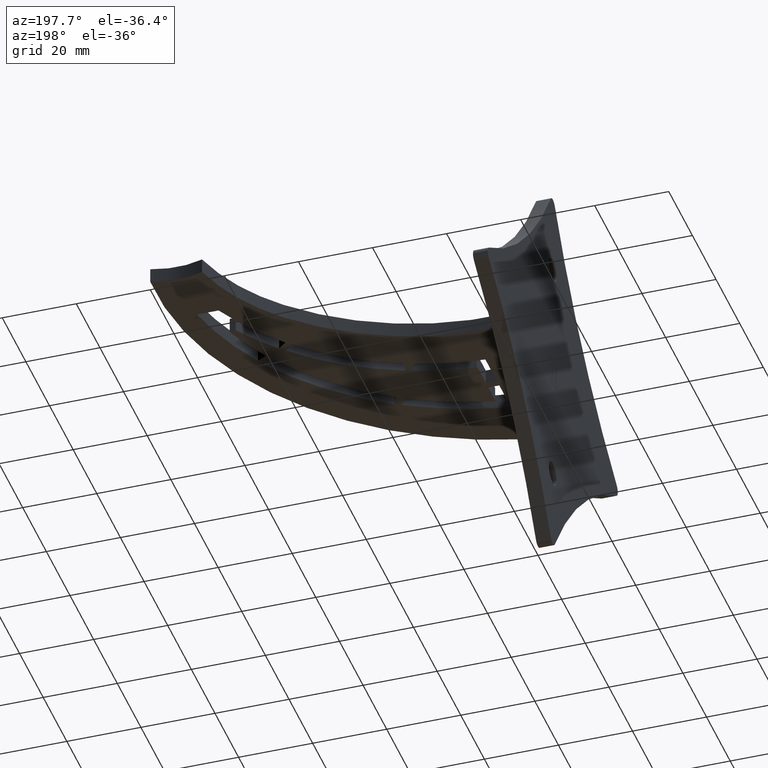
[diagram: clean part render]
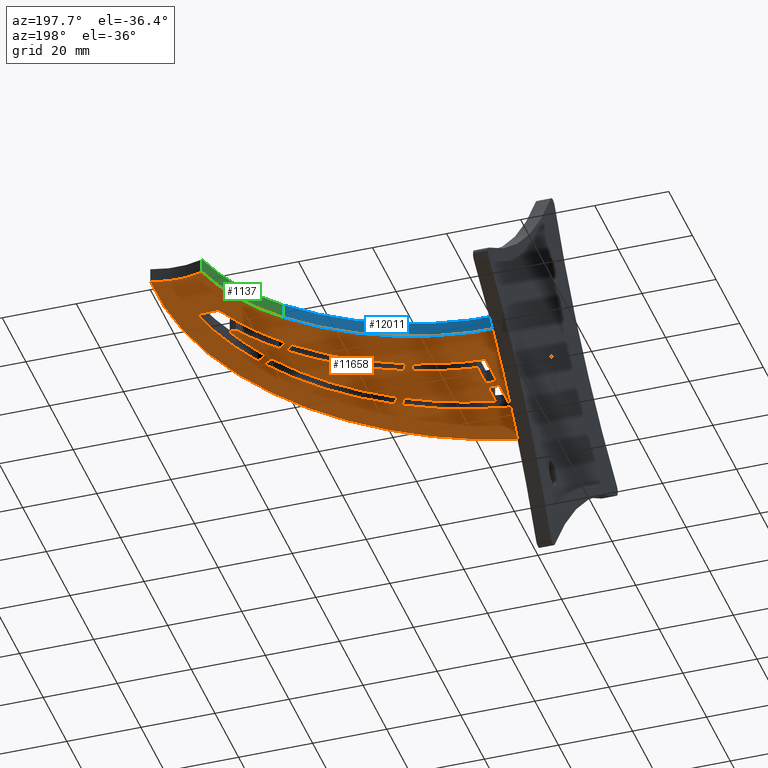
[diagram: same view with three faces highlighted in distinct colors, each labeled with its STEP entity id]
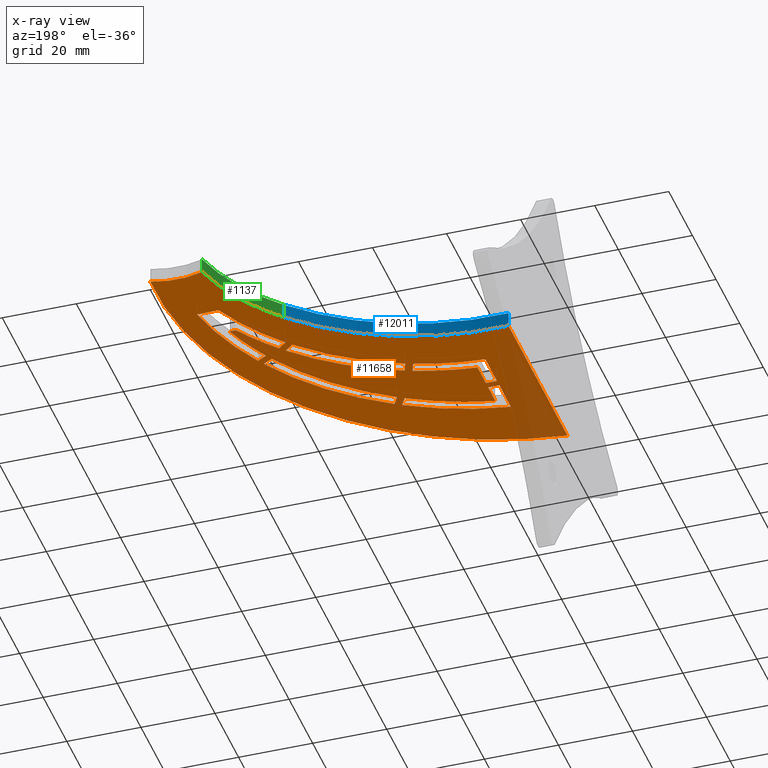
[diagram: x-ray of the same camera — body ghosted, the three highlighted faces saturated]
A machine part, auxiliary view with three faces highlighted in distinct colors.
The next image is the same camera in x-ray (body ghosted, the three faces saturated) — at least one of them is partly hidden behind the body in this view.
Their STEP definitions:

[orange] entity #11658 — the highlighted planar face has unit normal (-0, 0, 1).
#24 = CARTESIAN_POINT ( 'NONE',  ( 1.998401444325281773E-12, 24.99999999999996803, -2.000000000000000000 ) ) ;
#89 = ORIENTED_EDGE ( 'NONE', *, *, #11861, .T. ) ;
#135 = DIRECTION ( 'NONE',  ( 1.000000000000000000, 0.000000000000000000, 0.000000000000000000 ) ) ;
#233 = VERTEX_POINT ( 'NONE', #2906 ) ;
#246 = CIRCLE ( 'NONE', #6809, 75.50000000277350409 ) ;
#268 = VERTEX_POINT ( 'NONE', #5363 ) ;
#298 = EDGE_LOOP ( 'NONE', ( #12855, #11514, #5197, #6273 ) ) ;
#352 = VECTOR ( 'NONE', #5991, 1000.000000000000000 ) ;
#357 = DIRECTION ( 'NONE',  ( 1.000000000000000000, 0.000000000000000000, 0.000000000000000000 ) ) ;
#365 = DIRECTION ( 'NONE',  ( 0.7683469671252389777, -0.6400335445189156980, 0.000000000000000000 ) ) ;
#440 = CARTESIAN_POINT ( 'NONE',  ( 69.08826649521368779, 44.16837689730377292, -2.000000000000000000 ) ) ;
#520 = LINE ( 'NONE', #4764, #3982 ) ;
#550 = VERTEX_POINT ( 'NONE', #11488 ) ;
#623 = ORIENTED_EDGE ( 'NONE', *, *, #952, .F. ) ;
#737 = EDGE_CURVE ( 'NONE', #3429, #7686, #4204, .T. ) ;
#907 = AXIS2_PLACEMENT_3D ( 'NONE', #3653, #1531, #9978 ) ;
#936 = CARTESIAN_POINT ( 'NONE',  ( 34.99996197542167664, 3.161277910388546442, -2.000000000000000000 ) ) ;
#952 = EDGE_CURVE ( 'NONE', #11168, #11778, #3860, .T. ) ;
#985 = DIRECTION ( 'NONE',  ( 0.8660254037844340447, -0.5000000000000078826, 0.000000000000000000 ) ) ;
#1035 = AXIS2_PLACEMENT_3D ( 'NONE', #5202, #5290, #7318 ) ;
#1042 = EDGE_CURVE ( 'NONE', #2740, #12741, #246, .T. ) ;
#1059 = DIRECTION ( 'NONE',  ( -0.000000000000000000, 0.000000000000000000, 1.000000000000000000 ) ) ;
#1197 = EDGE_CURVE ( 'NONE', #11113, #10931, #11794, .T. ) ;
#1216 = CARTESIAN_POINT ( 'NONE',  ( 29.45318661070406918, 13.88045996790233794, -2.000000000000000000 ) ) ;
#1230 = DIRECTION ( 'NONE',  ( 1.000000000000000000, 0.000000000000000000, 0.000000000000000000 ) ) ;
#1242 = ORIENTED_EDGE ( 'NONE', *, *, #9980, .F. ) ;
#1254 = LINE ( 'NONE', #12558, #3894 ) ;
#1283 = EDGE_CURVE ( 'NONE', #11506, #11168, #8660, .T. ) ;
#1330 = CARTESIAN_POINT ( 'NONE',  ( 39.48745065706642521, 47.40386376884318764, -2.000000000000000000 ) ) ;
#1334 = LINE ( 'NONE', #13193, #12055 ) ;
#1531 = DIRECTION ( 'NONE',  ( -0.000000000000000000, 0.000000000000000000, 1.000000000000000000 ) ) ;
#1566 = DIRECTION ( 'NONE',  ( 1.000000000000000000, 0.000000000000000000, 0.000000000000000000 ) ) ;
#1633 = DIRECTION ( 'NONE',  ( -0.000000000000000000, 0.000000000000000000, 1.000000000000000000 ) ) ;
#1638 = CARTESIAN_POINT ( 'NONE',  ( 40.76751774610470846, 48.94055770309351772, -2.000000000000000000 ) ) ;
#1665 = DIRECTION ( 'NONE',  ( -0.000000000000000000, 0.000000000000000000, 1.000000000000000000 ) ) ;
#1669 = ORIENTED_EDGE ( 'NONE', *, *, #13314, .T. ) ;
#1679 = CARTESIAN_POINT ( 'NONE',  ( -2.274320155918185815, 68.81855391245915143, -2.000000000000000000 ) ) ;
#1683 = CARTESIAN_POINT ( 'NONE',  ( -2.274320155918185815, 68.81855391245915143, -2.000000000000000000 ) ) ;
#1718 = AXIS2_PLACEMENT_3D ( 'NONE', #11160, #1665, #8102 ) ;
#1742 = AXIS2_PLACEMENT_3D ( 'NONE', #12755, #12842, #1230 ) ;
#1849 = EDGE_CURVE ( 'NONE', #12741, #6448, #3357, .T. ) ;
#1868 = DIRECTION ( 'NONE',  ( -0.5000000000000017764, 0.8660254037844377084, 0.000000000000000000 ) ) ;
#1935 = VERTEX_POINT ( 'NONE', #12454 ) ;
#1958 = LINE ( 'NONE', #12374, #11020 ) ;
#1962 = DIRECTION ( 'NONE',  ( -0.000000000000000000, 0.000000000000000000, 1.000000000000000000 ) ) ;
#2043 = AXIS2_PLACEMENT_3D ( 'NONE', #9257, #2919, #11286 ) ;
#2086 = VECTOR ( 'NONE', #8777, 1000.000000000000000 ) ;
#2108 = CARTESIAN_POINT ( 'NONE',  ( 74.81433309437242940, 54.00000000000000711, -2.000000000000000000 ) ) ;
#2114 = CARTESIAN_POINT ( 'NONE',  ( 13.35000000000025011, 9.933913978657852084, -2.000000000000000000 ) ) ;
#2147 = CARTESIAN_POINT ( 'NONE',  ( 36.72602755165311095, 4.171644635160063785, -2.000000000000000000 ) ) ;
#2160 = AXIS2_PLACEMENT_3D ( 'NONE', #2114, #1059, #135 ) ;
#2174 = VECTOR ( 'NONE', #6380, 999.9999999999998863 ) ;
#2213 = CARTESIAN_POINT ( 'NONE',  ( 13.35000000000025189, -4.791520942025062624, -2.000000000000000000 ) ) ;
#2226 = VERTEX_POINT ( 'NONE', #8886 ) ;
#2309 = CARTESIAN_POINT ( 'NONE',  ( 13.10000000000000142, 1.100000000000000311, -2.000000000000000000 ) ) ;
#2337 = DIRECTION ( 'NONE',  ( -0.000000000000000000, 0.000000000000000000, 1.000000000000000000 ) ) ;
#2413 = CIRCLE ( 'NONE', #5266, 0.2500000000000140998 ) ;
#2463 = EDGE_CURVE ( 'NONE', #9987, #233, #10141, .T. ) ;
#2477 = ORIENTED_EDGE ( 'NONE', *, *, #13402, .T. ) ;
#2591 = DIRECTION ( 'NONE',  ( 3.552713678800588651E-14, 1.000000000000000000, 0.000000000000000000 ) ) ;
#2722 = CARTESIAN_POINT ( 'NONE',  ( 28.41691154838158795, 16.69611186267583491, -2.000000000000000000 ) ) ;
#2740 = VERTEX_POINT ( 'NONE', #2147 ) ;
#2834 = CARTESIAN_POINT ( 'NONE',  ( 13.09999999999999609, 3.100000000000002309, -2.000000000000000000 ) ) ;
#2843 = DIRECTION ( 'NONE',  ( -0.000000000000000000, 0.000000000000000000, 1.000000000000000000 ) ) ;
#2906 = CARTESIAN_POINT ( 'NONE',  ( 55.50000000000000000, 34.06539931041406533, -2.000000000000000000 ) ) ;
#2907 = EDGE_CURVE ( 'NONE', #8495, #1935, #9213, .T. ) ;
#2919 = DIRECTION ( 'NONE',  ( -0.000000000000000000, 0.000000000000000000, 1.000000000000000000 ) ) ;
#2957 = AXIS2_PLACEMENT_3D ( 'NONE', #3711, #11976, #5844 ) ;
#3036 = CARTESIAN_POINT ( 'NONE',  ( -9.878794471127335441, 66.46807869304582539, -2.000000000000000000 ) ) ;
#3154 = DIRECTION ( 'NONE',  ( 1.000000000000000000, 0.000000000000000000, 0.000000000000000000 ) ) ;
#3264 = DIRECTION ( 'NONE',  ( 1.000000000000000000, 0.000000000000000000, 0.000000000000000000 ) ) ;
#3357 = LINE ( 'NONE', #3919, #11112 ) ;
#3363 = ORIENTED_EDGE ( 'NONE', *, *, #2907, .T. ) ;
#3370 = AXIS2_PLACEMENT_3D ( 'NONE', #13033, #9868, #8810 ) ;
#3407 = VERTEX_POINT ( 'NONE', #440 ) ;
#3429 = VERTEX_POINT ( 'NONE', #3851 ) ;
#3462 = ORIENTED_EDGE ( 'NONE', *, *, #8308, .F. ) ;
#3500 = EDGE_CURVE ( 'NONE', #11026, #7802, #1334, .T. ) ;
#3525 = CARTESIAN_POINT ( 'NONE',  ( 31.33010419547926872, 14.57124240828424711, -2.000000000000000000 ) ) ;
#3557 = CARTESIAN_POINT ( 'NONE',  ( 63.41057880476433439, 31.59297065384887659, -2.000000000000000000 ) ) ;
#3575 = DIRECTION ( 'NONE',  ( -0.000000000000000000, 0.000000000000000000, 1.000000000000000000 ) ) ;
#3578 = EDGE_CURVE ( 'NONE', #4958, #7686, #11732, .T. ) ;
#3589 = DIRECTION ( 'NONE',  ( 0.000000000000000000, 1.000000000000000000, -0.000000000000000000 ) ) ;
#3601 = DIRECTION ( 'NONE',  ( 1.000000000000000000, -5.174308923711817413E-15, 0.000000000000000000 ) ) ;
#3624 = VECTOR ( 'NONE', #10233, 1000.000000000000114 ) ;
#3653 = CARTESIAN_POINT ( 'NONE',  ( 67.51093839320922996, 44.24999999999997868, -2.000000000000000000 ) ) ;
#3711 = CARTESIAN_POINT ( 'NONE',  ( -2.274320155918185815, 68.81855391245915143, -2.000000000000000000 ) ) ;
#3756 = ORIENTED_EDGE ( 'NONE', *, *, #12806, .F. ) ;
#3762 = CARTESIAN_POINT ( 'NONE',  ( -4.481368979606760207E-16, 3.100000000000000977, -2.000000000000000000 ) ) ;
#3844 = DIRECTION ( 'NONE',  ( -0.000000000000000000, 0.000000000000000000, 1.000000000000000000 ) ) ;
#3851 = CARTESIAN_POINT ( 'NONE',  ( 36.49999999999999289, 0.5631358385336567851, -2.000000000000000000 ) ) ;
#3860 = LINE ( 'NONE', #8663, #13252 ) ;
#3882 = CARTESIAN_POINT ( 'NONE',  ( 69.01433309437241803, 54.00000000000000711, -2.000000000000000000 ) ) ;
#3894 = VECTOR ( 'NONE', #985, 1000.000000000000114 ) ;
#3919 = CARTESIAN_POINT ( 'NONE',  ( 28.53280228481606784, 49.42026323961830059, -2.000000000000000000 ) ) ;
#3929 = AXIS2_PLACEMENT_3D ( 'NONE', #7516, #8546, #3264 ) ;
#3982 = VECTOR ( 'NONE', #3601, 1000.000000000000000 ) ;
#4047 = VERTEX_POINT ( 'NONE', #7122 ) ;
#4204 = LINE ( 'NONE', #12668, #7352 ) ;
#4255 = CIRCLE ( 'NONE', #907, 0.2500000000000279776 ) ;
#4412 = CIRCLE ( 'NONE', #7528, 0.2500000000000366374 ) ;
#4494 = ORIENTED_EDGE ( 'NONE', *, *, #2463, .F. ) ;
#4572 = VERTEX_POINT ( 'NONE', #5263 ) ;
#4621 = FACE_BOUND ( 'NONE', #11907, .T. ) ;
#4643 = AXIS2_PLACEMENT_3D ( 'NONE', #6088, #2843, #6048 ) ;
#4764 = CARTESIAN_POINT ( 'NONE',  ( 2.302567471051777078E-13, 44.50000000000035527, -2.000000000000000000 ) ) ;
#4859 = EDGE_CURVE ( 'NONE', #11506, #8575, #8907, .T. ) ;
#4902 = LINE ( 'NONE', #5825, #2086 ) ;
#4949 = CIRCLE ( 'NONE', #1742, 69.99999999999998579 ) ;
#4958 = VERTEX_POINT ( 'NONE', #9328 ) ;
#5125 = CIRCLE ( 'NONE', #1035, 69.99999999999997158 ) ;
#5197 = ORIENTED_EDGE ( 'NONE', *, *, #1849, .F. ) ;
#5201 = CARTESIAN_POINT ( 'NONE',  ( -2.274320155918185815, 68.81855391245915143, -2.000000000000000000 ) ) ;
#5202 = CARTESIAN_POINT ( 'NONE',  ( 3.879352446742994065, 94.89242179660072907, -2.000000000000000000 ) ) ;
#5208 = EDGE_CURVE ( 'NONE', #8575, #5224, #12702, .T. ) ;
#5224 = VERTEX_POINT ( 'NONE', #10781 ) ;
#5225 = AXIS2_PLACEMENT_3D ( 'NONE', #8676, #7845, #7800 ) ;
#5228 = DIRECTION ( 'NONE',  ( 0.3453912201918108438, -0.9384587923901678286, 0.000000000000000000 ) ) ;
#5263 = CARTESIAN_POINT ( 'NONE',  ( 67.51093839320922996, 44.50000000000000711, -2.000000000000000000 ) ) ;
#5266 = AXIS2_PLACEMENT_3D ( 'NONE', #11985, #11899, #5633 ) ;
#5270 = EDGE_CURVE ( 'NONE', #11762, #13618, #12200, .T. ) ;
#5290 = DIRECTION ( 'NONE',  ( -0.000000000000000000, 0.000000000000000000, 1.000000000000000000 ) ) ;
#5330 = ORIENTED_EDGE ( 'NONE', *, *, #3500, .T. ) ;
#5363 = CARTESIAN_POINT ( 'NONE',  ( 10.09999999999999787, 12.90000000000000391, -2.000000000000000000 ) ) ;
#5402 = ORIENTED_EDGE ( 'NONE', *, *, #9159, .T. ) ;
#5420 = AXIS2_PLACEMENT_3D ( 'NONE', #1679, #3844, #10093 ) ;
#5425 = CIRCLE ( 'NONE', #8614, 91.99999999999938893 ) ;
#5579 = VERTEX_POINT ( 'NONE', #3525 ) ;
#5633 = DIRECTION ( 'NONE',  ( 1.000000000000000000, 0.000000000000000000, 0.000000000000000000 ) ) ;
#5727 = EDGE_CURVE ( 'NONE', #10753, #11778, #12359, .T. ) ;
#5734 = ORIENTED_EDGE ( 'NONE', *, *, #10218, .F. ) ;
#5825 = CARTESIAN_POINT ( 'NONE',  ( 10.09999999999999964, 1.787827255853647886E-15, -2.000000000000000000 ) ) ;
#5832 = DIRECTION ( 'NONE',  ( -0.000000000000000000, 0.000000000000000000, 1.000000000000000000 ) ) ;
#5841 = ORIENTED_EDGE ( 'NONE', *, *, #8272, .F. ) ;
#5844 = DIRECTION ( 'NONE',  ( 1.000000000000000000, 0.000000000000000000, 0.000000000000000000 ) ) ;
#5861 = DIRECTION ( 'NONE',  ( -0.000000000000000000, 0.000000000000000000, 1.000000000000000000 ) ) ;
#5891 = EDGE_LOOP ( 'NONE', ( #1669, #9779, #13212, #8220, #5330 ) ) ;
#5894 = EDGE_CURVE ( 'NONE', #13349, #2740, #1958, .T. ) ;
#5983 = VERTEX_POINT ( 'NONE', #8552 ) ;
#5991 = DIRECTION ( 'NONE',  ( 1.000000000000000000, 1.445602896647341382E-16, 0.000000000000000000 ) ) ;
#6017 = DIRECTION ( 'NONE',  ( 0.8660254037844365982, -0.5000000000000036637, 0.000000000000000000 ) ) ;
#6048 = DIRECTION ( 'NONE',  ( 1.000000000000000000, 0.000000000000000000, 0.000000000000000000 ) ) ;
#6071 = EDGE_LOOP ( 'NONE', ( #6299, #12147, #3756, #7854, #6331, #3363, #5734 ) ) ;
#6088 = CARTESIAN_POINT ( 'NONE',  ( 0.000000000000000000, 0.000000000000000000, -2.000000000000000000 ) ) ;
#6132 = AXIS2_PLACEMENT_3D ( 'NONE', #6875, #8955, #1566 ) ;
#6146 = EDGE_CURVE ( 'NONE', #4572, #5224, #4255, .T. ) ;
#6175 = EDGE_CURVE ( 'NONE', #2226, #5983, #12345, .T. ) ;
#6202 = DIRECTION ( 'NONE',  ( 1.000000000000000000, 0.000000000000000000, 0.000000000000000000 ) ) ;
#6219 = VECTOR ( 'NONE', #365, 1000.000000000000114 ) ;
#6273 = ORIENTED_EDGE ( 'NONE', *, *, #1042, .F. ) ;
#6299 = ORIENTED_EDGE ( 'NONE', *, *, #1197, .T. ) ;
#6301 = LINE ( 'NONE', #10985, #9757 ) ;
#6305 = CARTESIAN_POINT ( 'NONE',  ( 13.10000000000004228, 4.898666193980483286E-13, -2.000000000000000000 ) ) ;
#6331 = ORIENTED_EDGE ( 'NONE', *, *, #9716, .T. ) ;
#6365 = DIRECTION ( 'NONE',  ( -0.5000000000000005551, 0.8660254037844382635, 0.000000000000000000 ) ) ;
#6380 = DIRECTION ( 'NONE',  ( 0.3453912201917184177, -0.9384587923902019124, 0.000000000000000000 ) ) ;
#6448 = VERTEX_POINT ( 'NONE', #6465 ) ;
#6465 = CARTESIAN_POINT ( 'NONE',  ( 65.00000000000001421, 28.36591682216534593, -2.000000000000000000 ) ) ;
#6532 = EDGE_CURVE ( 'NONE', #12776, #4958, #4412, .T. ) ;
#6670 = CARTESIAN_POINT ( 'NONE',  ( -2.274320155918185815, 68.81855391245915143, -2.000000000000000000 ) ) ;
#6714 = ORIENTED_EDGE ( 'NONE', *, *, #3578, .F. ) ;
#6809 = AXIS2_PLACEMENT_3D ( 'NONE', #1683, #1633, #6898 ) ;
#6875 = CARTESIAN_POINT ( 'NONE',  ( 14.61404249810564338, 84.41547426875771976, -2.000000000000000000 ) ) ;
#6898 = DIRECTION ( 'NONE',  ( 1.000000000000000000, 0.000000000000000000, 0.000000000000000000 ) ) ;
#7019 = ORIENTED_EDGE ( 'NONE', *, *, #7728, .T. ) ;
#7122 = CARTESIAN_POINT ( 'NONE',  ( 68.85196653942389844, 44.50000000000000000, -2.000000000000000000 ) ) ;
#7255 = VECTOR ( 'NONE', #3589, 1000.000000000000000 ) ;
#7258 = AXIS2_PLACEMENT_3D ( 'NONE', #12172, #5861, #11102 ) ;
#7273 = CARTESIAN_POINT ( 'NONE',  ( 59.17939240146306901, 33.60345363278309350, -2.000000000000000000 ) ) ;
#7318 = DIRECTION ( 'NONE',  ( 1.000000000000000000, 0.000000000000000000, 0.000000000000000000 ) ) ;
#7352 = VECTOR ( 'NONE', #6365, 1000.000000000000114 ) ;
#7393 = CARTESIAN_POINT ( 'NONE',  ( 32.31563232537948238, 11.89347446114490836, -2.000000000000000000 ) ) ;
#7429 = DIRECTION ( 'NONE',  ( 1.000000000000000000, 0.000000000000000000, 0.000000000000000000 ) ) ;
#7435 = FACE_BOUND ( 'NONE', #11192, .T. ) ;
#7493 = CARTESIAN_POINT ( 'NONE',  ( 57.81112312110035845, 32.14023218370323320, -2.000000000000000000 ) ) ;
#7516 = CARTESIAN_POINT ( 'NONE',  ( 74.99999999999998579, 91.20000000000000284, -2.000000000000000000 ) ) ;
#7528 = AXIS2_PLACEMENT_3D ( 'NONE', #2213, #2337, #7429 ) ;
#7587 = CIRCLE ( 'NONE', #9781, 75.50000000277351830 ) ;
#7633 = VERTEX_POINT ( 'NONE', #11323 ) ;
#7686 = VERTEX_POINT ( 'NONE', #936 ) ;
#7728 = EDGE_CURVE ( 'NONE', #8005, #10753, #1254, .T. ) ;
#7743 = ORIENTED_EDGE ( 'NONE', *, *, #5727, .T. ) ;
#7764 = FACE_BOUND ( 'NONE', #298, .T. ) ;
#7800 = DIRECTION ( 'NONE',  ( 1.000000000000000000, 0.000000000000000000, 0.000000000000000000 ) ) ;
#7802 = VERTEX_POINT ( 'NONE', #24 ) ;
#7845 = DIRECTION ( 'NONE',  ( -0.000000000000000000, 0.000000000000000000, 1.000000000000000000 ) ) ;
#7854 = ORIENTED_EDGE ( 'NONE', *, *, #8007, .F. ) ;
#7909 = VERTEX_POINT ( 'NONE', #2309 ) ;
#7960 = ORIENTED_EDGE ( 'NONE', *, *, #8047, .T. ) ;
#8005 = VERTEX_POINT ( 'NONE', #3557 ) ;
#8007 = EDGE_CURVE ( 'NONE', #550, #268, #4902, .T. ) ;
#8047 = EDGE_CURVE ( 'NONE', #5579, #10919, #12148, .T. ) ;
#8091 = VERTEX_POINT ( 'NONE', #2722 ) ;
#8102 = DIRECTION ( 'NONE',  ( 1.000000000000000000, 0.000000000000000000, 0.000000000000000000 ) ) ;
#8220 = ORIENTED_EDGE ( 'NONE', *, *, #8984, .F. ) ;
#8272 = EDGE_CURVE ( 'NONE', #3407, #4047, #2413, .T. ) ;
#8308 = EDGE_CURVE ( 'NONE', #233, #10919, #9013, .T. ) ;
#8375 = CARTESIAN_POINT ( 'NONE',  ( 30.43871474060331650, 11.20269202076643822, -2.000000000000000000 ) ) ;
#8385 = CARTESIAN_POINT ( 'NONE',  ( 66.00873501796485243, 30.09292446476082361, -2.000000000000000000 ) ) ;
#8495 = VERTEX_POINT ( 'NONE', #2834 ) ;
#8527 = CARTESIAN_POINT ( 'NONE',  ( 13.10000000000022169, -4.791520942025062624, -2.000000000000000000 ) ) ;
#8546 = DIRECTION ( 'NONE',  ( -0.000000000000000000, 0.000000000000000000, 1.000000000000000000 ) ) ;
#8552 = CARTESIAN_POINT ( 'NONE',  ( 68.00000000000000000, 71.18900302333739205, -2.000000000000000000 ) ) ;
#8575 = VERTEX_POINT ( 'NONE', #7273 ) ;
#8606 = CIRCLE ( 'NONE', #11805, 78.49999999999998579 ) ;
#8614 = AXIS2_PLACEMENT_3D ( 'NONE', #3036, #12503, #6202 ) ;
#8660 = CIRCLE ( 'NONE', #5225, 70.00000000000000000 ) ;
#8663 = CARTESIAN_POINT ( 'NONE',  ( -0.000000000000000000, 54.00000000000000711, -2.000000000000000000 ) ) ;
#8676 = CARTESIAN_POINT ( 'NONE',  ( 5.180452133363093736, 82.72691493104838401, -2.000000000000000000 ) ) ;
#8702 = DIRECTION ( 'NONE',  ( 1.000000000000000000, 0.000000000000000000, 0.000000000000000000 ) ) ;
#8743 = VECTOR ( 'NONE', #13654, 1000.000000000000000 ) ;
#8777 = DIRECTION ( 'NONE',  ( -1.770125995894700956E-16, 1.000000000000000000, 0.000000000000000000 ) ) ;
#8810 = DIRECTION ( 'NONE',  ( 1.000000000000000000, 0.000000000000000000, 0.000000000000000000 ) ) ;
#8832 = CARTESIAN_POINT ( 'NONE',  ( -1.998401444325186453E-12, -24.99999999999879918, -2.000000000000000000 ) ) ;
#8886 = CARTESIAN_POINT ( 'NONE',  ( 53.97457268643530881, 45.99999999999996447, -2.000000000000000000 ) ) ;
#8907 = LINE ( 'NONE', #1638, #3624 ) ;
#8955 = DIRECTION ( 'NONE',  ( -0.000000000000000000, 0.000000000000000000, 1.000000000000000000 ) ) ;
#8971 = CARTESIAN_POINT ( 'NONE',  ( 13.09999999999989306, -4.356155149773243477E-13, -2.000000000000000000 ) ) ;
#8984 = EDGE_CURVE ( 'NONE', #11026, #7633, #5425, .T. ) ;
#9013 = LINE ( 'NONE', #1330, #6219 ) ;
#9042 = EDGE_CURVE ( 'NONE', #8091, #10931, #11745, .T. ) ;
#9145 = CARTESIAN_POINT ( 'NONE',  ( 13.32211758407314939, 10.18235425494592938, -2.000000000000000000 ) ) ;
#9159 = EDGE_CURVE ( 'NONE', #9987, #5579, #10313, .T. ) ;
#9213 = LINE ( 'NONE', #8971, #9876 ) ;
#9257 = CARTESIAN_POINT ( 'NONE',  ( -2.274320155918185815, 68.81855391245915143, -2.000000000000000000 ) ) ;
#9317 = CARTESIAN_POINT ( 'NONE',  ( 56.87206340631109924, 35.52546025000670937, -2.000000000000000000 ) ) ;
#9328 = CARTESIAN_POINT ( 'NONE',  ( 13.40190804038342876, -5.036072685718692377, -2.000000000000000000 ) ) ;
#9406 = CIRCLE ( 'NONE', #2957, 78.50000000000000000 ) ;
#9436 = EDGE_LOOP ( 'NONE', ( #11262, #7019, #7743, #623, #13581, #10370, #11472, #12304, #11524, #5841 ) ) ;
#9439 = CARTESIAN_POINT ( 'NONE',  ( 38.22629435678329912, 1.573106303765562597, -2.000000000000000000 ) ) ;
#9514 = ORIENTED_EDGE ( 'NONE', *, *, #5270, .F. ) ;
#9564 = FACE_BOUND ( 'NONE', #9436, .T. ) ;
#9716 = EDGE_CURVE ( 'NONE', #550, #8495, #13204, .T. ) ;
#9757 = VECTOR ( 'NONE', #12994, 1000.000000000000000 ) ;
#9779 = ORIENTED_EDGE ( 'NONE', *, *, #6175, .T. ) ;
#9781 = AXIS2_PLACEMENT_3D ( 'NONE', #6670, #3575, #357 ) ;
#9868 = DIRECTION ( 'NONE',  ( -0.000000000000000000, 0.000000000000000000, 1.000000000000000000 ) ) ;
#9876 = VECTOR ( 'NONE', #13235, 1000.000000000000000 ) ;
#9978 = DIRECTION ( 'NONE',  ( 1.000000000000000000, 0.000000000000000000, 0.000000000000000000 ) ) ;
#9980 = EDGE_CURVE ( 'NONE', #13618, #7909, #6301, .T. ) ;
#9987 = VERTEX_POINT ( 'NONE', #10926 ) ;
#9989 = EDGE_CURVE ( 'NONE', #4572, #4047, #520, .T. ) ;
#10033 = CARTESIAN_POINT ( 'NONE',  ( 5.180452133363093736, 82.72691493104838401, -2.000000000000000000 ) ) ;
#10093 = DIRECTION ( 'NONE',  ( 1.000000000000000000, 0.000000000000000000, 0.000000000000000000 ) ) ;
#10141 = CIRCLE ( 'NONE', #7258, 70.00000000000002842 ) ;
#10218 = EDGE_CURVE ( 'NONE', #11113, #1935, #11585, .T. ) ;
#10233 = DIRECTION ( 'NONE',  ( 0.7683469671252344257, -0.6400335445189211381, 0.000000000000000000 ) ) ;
#10313 = LINE ( 'NONE', #7393, #2174 ) ;
#10352 = AXIS2_PLACEMENT_3D ( 'NONE', #10033, #5832, #13177 ) ;
#10370 = ORIENTED_EDGE ( 'NONE', *, *, #4859, .T. ) ;
#10507 = CARTESIAN_POINT ( 'NONE',  ( 10.09999999999999964, -8.700000000000001066, -2.000000000000000000 ) ) ;
#10729 = EDGE_CURVE ( 'NONE', #13349, #6448, #8606, .T. ) ;
#10753 = VERTEX_POINT ( 'NONE', #8385 ) ;
#10781 = CARTESIAN_POINT ( 'NONE',  ( 67.29820635819267238, 44.38132052877488576, -2.000000000000000000 ) ) ;
#10884 = FACE_BOUND ( 'NONE', #6071, .T. ) ;
#10919 = VERTEX_POINT ( 'NONE', #7493 ) ;
#10926 = CARTESIAN_POINT ( 'NONE',  ( 30.29382913315705039, 17.38689430305788974, -2.000000000000000000 ) ) ;
#10931 = VERTEX_POINT ( 'NONE', #1216 ) ;
#10985 = CARTESIAN_POINT ( 'NONE',  ( -0.000000000000000000, 1.100000000000000311, -2.000000000000000000 ) ) ;
#11020 = VECTOR ( 'NONE', #1868, 999.9999999999998863 ) ;
#11026 = VERTEX_POINT ( 'NONE', #8832 ) ;
#11102 = DIRECTION ( 'NONE',  ( 1.000000000000000000, 0.000000000000000000, 0.000000000000000000 ) ) ;
#11112 = VECTOR ( 'NONE', #6017, 1000.000000000000000 ) ;
#11113 = VERTEX_POINT ( 'NONE', #9145 ) ;
#11160 = CARTESIAN_POINT ( 'NONE',  ( 5.180452133363093736, 82.72691493104838401, -2.000000000000000000 ) ) ;
#11168 = VERTEX_POINT ( 'NONE', #3882 ) ;
#11192 = EDGE_LOOP ( 'NONE', ( #7960, #3462, #4494, #5402 ) ) ;
#11225 = EDGE_CURVE ( 'NONE', #5983, #7633, #12048, .T. ) ;
#11240 = VECTOR ( 'NONE', #5228, 1000.000000000000114 ) ;
#11262 = ORIENTED_EDGE ( 'NONE', *, *, #12955, .F. ) ;
#11286 = DIRECTION ( 'NONE',  ( 1.000000000000000000, 0.000000000000000000, 0.000000000000000000 ) ) ;
#11323 = CARTESIAN_POINT ( 'NONE',  ( 81.99999999999997158, 71.18900302333739205, -2.000000000000000000 ) ) ;
#11350 = ORIENTED_EDGE ( 'NONE', *, *, #737, .T. ) ;
#11472 = ORIENTED_EDGE ( 'NONE', *, *, #5208, .T. ) ;
#11488 = CARTESIAN_POINT ( 'NONE',  ( 10.09999999999999964, 3.100000000000001865, -2.000000000000000000 ) ) ;
#11506 = VERTEX_POINT ( 'NONE', #9317 ) ;
#11514 = ORIENTED_EDGE ( 'NONE', *, *, #10729, .T. ) ;
#11524 = ORIENTED_EDGE ( 'NONE', *, *, #9989, .T. ) ;
#11558 = LINE ( 'NONE', #6305, #8743 ) ;
#11585 = CIRCLE ( 'NONE', #2160, 0.2500000000000296985 ) ;
#11658 = ADVANCED_FACE ( 'NONE', ( #4621, #12378, #10884, #7764, #7435, #9564 ), #13576, .F. ) ;
#11732 = CIRCLE ( 'NONE', #2043, 75.50000000277351830 ) ;
#11745 = LINE ( 'NONE', #8375, #11240 ) ;
#11762 = VERTEX_POINT ( 'NONE', #10507 ) ;
#11778 = VERTEX_POINT ( 'NONE', #2108 ) ;
#11794 = CIRCLE ( 'NONE', #10352, 72.99999999999998579 ) ;
#11805 = AXIS2_PLACEMENT_3D ( 'NONE', #5201, #1962, #3154 ) ;
#11861 = EDGE_CURVE ( 'NONE', #11762, #3429, #9406, .T. ) ;
#11899 = DIRECTION ( 'NONE',  ( -0.000000000000000000, 0.000000000000000000, 1.000000000000000000 ) ) ;
#11907 = EDGE_LOOP ( 'NONE', ( #9514, #89, #11350, #6714, #13359, #2477, #1242 ) ) ;
#11952 = CARTESIAN_POINT ( 'NONE',  ( 10.09999999999999964, 0.000000000000000000, -2.000000000000000000 ) ) ;
#11976 = DIRECTION ( 'NONE',  ( -0.000000000000000000, 0.000000000000000000, 1.000000000000000000 ) ) ;
#11985 = CARTESIAN_POINT ( 'NONE',  ( 68.85196653942389844, 44.24999999999997868, -2.000000000000000000 ) ) ;
#12048 = CIRCLE ( 'NONE', #3929, 21.19999999999999574 ) ;
#12055 = VECTOR ( 'NONE', #2591, 1000.000000000000000 ) ;
#12147 = ORIENTED_EDGE ( 'NONE', *, *, #9042, .F. ) ;
#12148 = CIRCLE ( 'NONE', #1718, 73.00000000000001421 ) ;
#12172 = CARTESIAN_POINT ( 'NONE',  ( 5.180452133363093736, 82.72691493104838401, -2.000000000000000000 ) ) ;
#12200 = LINE ( 'NONE', #11952, #7255 ) ;
#12304 = ORIENTED_EDGE ( 'NONE', *, *, #6146, .F. ) ;
#12345 = CIRCLE ( 'NONE', #6132, 55.00000000000000711 ) ;
#12359 = CIRCLE ( 'NONE', #5420, 78.49999999999998579 ) ;
#12374 = CARTESIAN_POINT ( 'NONE',  ( 29.35089577854461496, 16.94574757869946424, -2.000000000000000000 ) ) ;
#12378 = FACE_OUTER_BOUND ( 'NONE', #5891, .T. ) ;
#12454 = CARTESIAN_POINT ( 'NONE',  ( 13.10000000000022169, 9.933913978657852084, -2.000000000000000000 ) ) ;
#12486 = CARTESIAN_POINT ( 'NONE',  ( 62.40149663089107435, 29.86616344181055283, -2.000000000000000000 ) ) ;
#12503 = DIRECTION ( 'NONE',  ( -0.000000000000000000, 0.000000000000000000, 1.000000000000000000 ) ) ;
#12558 = CARTESIAN_POINT ( 'NONE',  ( 29.53280228481641956, 51.15231404718719688, -2.000000000000000000 ) ) ;
#12668 = CARTESIAN_POINT ( 'NONE',  ( 27.61884497097577551, 15.94574757869942871, -2.000000000000000000 ) ) ;
#12702 = CIRCLE ( 'NONE', #3370, 73.00000000000001421 ) ;
#12741 = VERTEX_POINT ( 'NONE', #12486 ) ;
#12755 = CARTESIAN_POINT ( 'NONE',  ( 5.180452133363093736, 82.72691493104838401, -2.000000000000000000 ) ) ;
#12776 = VERTEX_POINT ( 'NONE', #8527 ) ;
#12806 = EDGE_CURVE ( 'NONE', #268, #8091, #4949, .T. ) ;
#12842 = DIRECTION ( 'NONE',  ( -0.000000000000000000, 0.000000000000000000, 1.000000000000000000 ) ) ;
#12855 = ORIENTED_EDGE ( 'NONE', *, *, #5894, .F. ) ;
#12955 = EDGE_CURVE ( 'NONE', #8005, #3407, #7587, .T. ) ;
#12994 = DIRECTION ( 'NONE',  ( 1.000000000000000000, 0.000000000000000000, 0.000000000000000000 ) ) ;
#13033 = CARTESIAN_POINT ( 'NONE',  ( 5.180452133363093736, 82.72691493104838401, -2.000000000000000000 ) ) ;
#13177 = DIRECTION ( 'NONE',  ( 1.000000000000000000, 0.000000000000000000, 0.000000000000000000 ) ) ;
#13193 = CARTESIAN_POINT ( 'NONE',  ( 1.110223024625135740E-12, -3.944304526105082560E-26, -2.000000000000000000 ) ) ;
#13204 = LINE ( 'NONE', #3762, #352 ) ;
#13212 = ORIENTED_EDGE ( 'NONE', *, *, #11225, .T. ) ;
#13235 = DIRECTION ( 'NONE',  ( 3.325309274636090619E-14, 1.000000000000000000, 0.000000000000000000 ) ) ;
#13252 = VECTOR ( 'NONE', #8702, 1000.000000000000000 ) ;
#13314 = EDGE_CURVE ( 'NONE', #7802, #2226, #5125, .T. ) ;
#13325 = CARTESIAN_POINT ( 'NONE',  ( 10.09999999999999964, 1.100000000000000311, -2.000000000000000000 ) ) ;
#13349 = VERTEX_POINT ( 'NONE', #9439 ) ;
#13359 = ORIENTED_EDGE ( 'NONE', *, *, #6532, .F. ) ;
#13402 = EDGE_CURVE ( 'NONE', #12776, #7909, #11558, .T. ) ;
#13576 = PLANE ( 'NONE',  #4643 ) ;
#13581 = ORIENTED_EDGE ( 'NONE', *, *, #1283, .F. ) ;
#13618 = VERTEX_POINT ( 'NONE', #13325 ) ;
#13654 = DIRECTION ( 'NONE',  ( -3.739439842733181748E-14, 1.000000000000000000, 0.000000000000000000 ) ) ;

[blue] entity #12011 — the highlighted cylindrical surface (partial cylindrical patch) has radius 70 mm, axis along (-0, -0, -1).
#24 = CARTESIAN_POINT ( 'NONE',  ( 1.998401444325281773E-12, 24.99999999999996803, -2.000000000000000000 ) ) ;
#666 = VERTEX_POINT ( 'NONE', #12627 ) ;
#815 = CARTESIAN_POINT ( 'NONE',  ( 1.998401444325281773E-12, 24.99999999999996803, 2.000000000000000000 ) ) ;
#1035 = AXIS2_PLACEMENT_3D ( 'NONE', #5202, #5290, #7318 ) ;
#1125 = DIRECTION ( 'NONE',  ( 1.000000000000000000, 0.000000000000000000, 0.000000000000000000 ) ) ;
#1300 = ORIENTED_EDGE ( 'NONE', *, *, #2533, .F. ) ;
#1313 = FACE_OUTER_BOUND ( 'NONE', #5648, .T. ) ;
#1879 = CARTESIAN_POINT ( 'NONE',  ( 53.97457268643530881, 45.99999999999996447, 2.000000000000000000 ) ) ;
#1911 = CARTESIAN_POINT ( 'NONE',  ( 3.879352446742994065, 94.89242179660072907, 2.000000000000000000 ) ) ;
#2226 = VERTEX_POINT ( 'NONE', #8886 ) ;
#2533 = EDGE_CURVE ( 'NONE', #666, #7802, #7329, .T. ) ;
#3666 = EDGE_CURVE ( 'NONE', #666, #11688, #8760, .T. ) ;
#4122 = CARTESIAN_POINT ( 'NONE',  ( 3.879352446742994065, 94.89242179660072907, 2.000000000000000000 ) ) ;
#4197 = AXIS2_PLACEMENT_3D ( 'NONE', #1911, #12514, #8341 ) ;
#4750 = LINE ( 'NONE', #1879, #13306 ) ;
#5125 = CIRCLE ( 'NONE', #1035, 69.99999999999997158 ) ;
#5202 = CARTESIAN_POINT ( 'NONE',  ( 3.879352446742994065, 94.89242179660072907, -2.000000000000000000 ) ) ;
#5290 = DIRECTION ( 'NONE',  ( -0.000000000000000000, 0.000000000000000000, 1.000000000000000000 ) ) ;
#5648 = EDGE_LOOP ( 'NONE', ( #5793, #1300, #6047, #7054 ) ) ;
#5793 = ORIENTED_EDGE ( 'NONE', *, *, #13314, .F. ) ;
#6047 = ORIENTED_EDGE ( 'NONE', *, *, #3666, .T. ) ;
#6349 = DIRECTION ( 'NONE',  ( -0.000000000000000000, 0.000000000000000000, 1.000000000000000000 ) ) ;
#6837 = EDGE_CURVE ( 'NONE', #11688, #2226, #4750, .T. ) ;
#7054 = ORIENTED_EDGE ( 'NONE', *, *, #6837, .T. ) ;
#7318 = DIRECTION ( 'NONE',  ( 1.000000000000000000, 0.000000000000000000, 0.000000000000000000 ) ) ;
#7329 = LINE ( 'NONE', #815, #10794 ) ;
#7423 = CYLINDRICAL_SURFACE ( 'NONE', #4197, 69.99999999999997158 ) ;
#7802 = VERTEX_POINT ( 'NONE', #24 ) ;
#8218 = CARTESIAN_POINT ( 'NONE',  ( 53.97457268643530881, 45.99999999999996447, 2.000000000000000000 ) ) ;
#8341 = DIRECTION ( 'NONE',  ( -1.000000000000000000, 0.000000000000000000, 0.000000000000000000 ) ) ;
#8760 = CIRCLE ( 'NONE', #12643, 69.99999999999997158 ) ;
#8886 = CARTESIAN_POINT ( 'NONE',  ( 53.97457268643530881, 45.99999999999996447, -2.000000000000000000 ) ) ;
#9210 = DIRECTION ( 'NONE',  ( -0.000000000000000000, -0.000000000000000000, -1.000000000000000000 ) ) ;
#10794 = VECTOR ( 'NONE', #9210, 1000.000000000000000 ) ;
#11688 = VERTEX_POINT ( 'NONE', #8218 ) ;
#12011 = ADVANCED_FACE ( 'NONE', ( #1313 ), #7423, .F. ) ;
#12433 = DIRECTION ( 'NONE',  ( -0.000000000000000000, -0.000000000000000000, -1.000000000000000000 ) ) ;
#12514 = DIRECTION ( 'NONE',  ( -0.000000000000000000, -0.000000000000000000, -1.000000000000000000 ) ) ;
#12627 = CARTESIAN_POINT ( 'NONE',  ( 1.998587412948803633E-12, 24.99999999999992539, 2.000000000000000000 ) ) ;
#12643 = AXIS2_PLACEMENT_3D ( 'NONE', #4122, #6349, #1125 ) ;
#13306 = VECTOR ( 'NONE', #12433, 1000.000000000000000 ) ;
#13314 = EDGE_CURVE ( 'NONE', #7802, #2226, #5125, .T. ) ;

[green] entity #1137 — the highlighted cylindrical surface (partial cylindrical patch) has radius 55 mm, axis along (-0, -0, -1).
#17 = CARTESIAN_POINT ( 'NONE',  ( 68.00000000000000000, 71.18900302333739205, 2.000000000000000000 ) ) ;
#1137 = ADVANCED_FACE ( 'NONE', ( #9810 ), #9475, .F. ) ;
#1399 = CARTESIAN_POINT ( 'NONE',  ( 14.61404249810564338, 84.41547426875771976, 2.000000000000000000 ) ) ;
#1566 = DIRECTION ( 'NONE',  ( 1.000000000000000000, 0.000000000000000000, 0.000000000000000000 ) ) ;
#1659 = EDGE_CURVE ( 'NONE', #11688, #9168, #7825, .T. ) ;
#1764 = EDGE_CURVE ( 'NONE', #9168, #5983, #11780, .T. ) ;
#1879 = CARTESIAN_POINT ( 'NONE',  ( 53.97457268643530881, 45.99999999999996447, 2.000000000000000000 ) ) ;
#2226 = VERTEX_POINT ( 'NONE', #8886 ) ;
#2360 = VECTOR ( 'NONE', #4622, 1000.000000000000000 ) ;
#3332 = DIRECTION ( 'NONE',  ( 1.000000000000000000, 0.000000000000000000, 0.000000000000000000 ) ) ;
#4472 = ORIENTED_EDGE ( 'NONE', *, *, #6175, .F. ) ;
#4622 = DIRECTION ( 'NONE',  ( -0.000000000000000000, -0.000000000000000000, -1.000000000000000000 ) ) ;
#4750 = LINE ( 'NONE', #1879, #13306 ) ;
#4961 = ORIENTED_EDGE ( 'NONE', *, *, #6837, .F. ) ;
#5848 = DIRECTION ( 'NONE',  ( -1.000000000000000000, 0.000000000000000000, 0.000000000000000000 ) ) ;
#5983 = VERTEX_POINT ( 'NONE', #8552 ) ;
#6132 = AXIS2_PLACEMENT_3D ( 'NONE', #6875, #8955, #1566 ) ;
#6175 = EDGE_CURVE ( 'NONE', #2226, #5983, #12345, .T. ) ;
#6794 = CARTESIAN_POINT ( 'NONE',  ( 68.00000000000000000, 71.18900302333739205, 2.000000000000000000 ) ) ;
#6837 = EDGE_CURVE ( 'NONE', #11688, #2226, #4750, .T. ) ;
#6875 = CARTESIAN_POINT ( 'NONE',  ( 14.61404249810564338, 84.41547426875771976, -2.000000000000000000 ) ) ;
#6949 = CARTESIAN_POINT ( 'NONE',  ( 14.61404249810564338, 84.41547426875771976, 2.000000000000000000 ) ) ;
#7076 = AXIS2_PLACEMENT_3D ( 'NONE', #1399, #13003, #3332 ) ;
#7514 = AXIS2_PLACEMENT_3D ( 'NONE', #6949, #10104, #5848 ) ;
#7825 = CIRCLE ( 'NONE', #7076, 55.00000000000000711 ) ;
#8069 = EDGE_LOOP ( 'NONE', ( #4472, #4961, #11092, #13023 ) ) ;
#8218 = CARTESIAN_POINT ( 'NONE',  ( 53.97457268643530881, 45.99999999999996447, 2.000000000000000000 ) ) ;
#8552 = CARTESIAN_POINT ( 'NONE',  ( 68.00000000000000000, 71.18900302333739205, -2.000000000000000000 ) ) ;
#8886 = CARTESIAN_POINT ( 'NONE',  ( 53.97457268643530881, 45.99999999999996447, -2.000000000000000000 ) ) ;
#8955 = DIRECTION ( 'NONE',  ( -0.000000000000000000, 0.000000000000000000, 1.000000000000000000 ) ) ;
#9168 = VERTEX_POINT ( 'NONE', #17 ) ;
#9475 = CYLINDRICAL_SURFACE ( 'NONE', #7514, 55.00000000000000711 ) ;
#9810 = FACE_OUTER_BOUND ( 'NONE', #8069, .T. ) ;
#10104 = DIRECTION ( 'NONE',  ( -0.000000000000000000, -0.000000000000000000, -1.000000000000000000 ) ) ;
#11092 = ORIENTED_EDGE ( 'NONE', *, *, #1659, .T. ) ;
#11688 = VERTEX_POINT ( 'NONE', #8218 ) ;
#11780 = LINE ( 'NONE', #6794, #2360 ) ;
#12345 = CIRCLE ( 'NONE', #6132, 55.00000000000000711 ) ;
#12433 = DIRECTION ( 'NONE',  ( -0.000000000000000000, -0.000000000000000000, -1.000000000000000000 ) ) ;
#13003 = DIRECTION ( 'NONE',  ( -0.000000000000000000, 0.000000000000000000, 1.000000000000000000 ) ) ;
#13023 = ORIENTED_EDGE ( 'NONE', *, *, #1764, .T. ) ;
#13306 = VECTOR ( 'NONE', #12433, 1000.000000000000000 ) ;